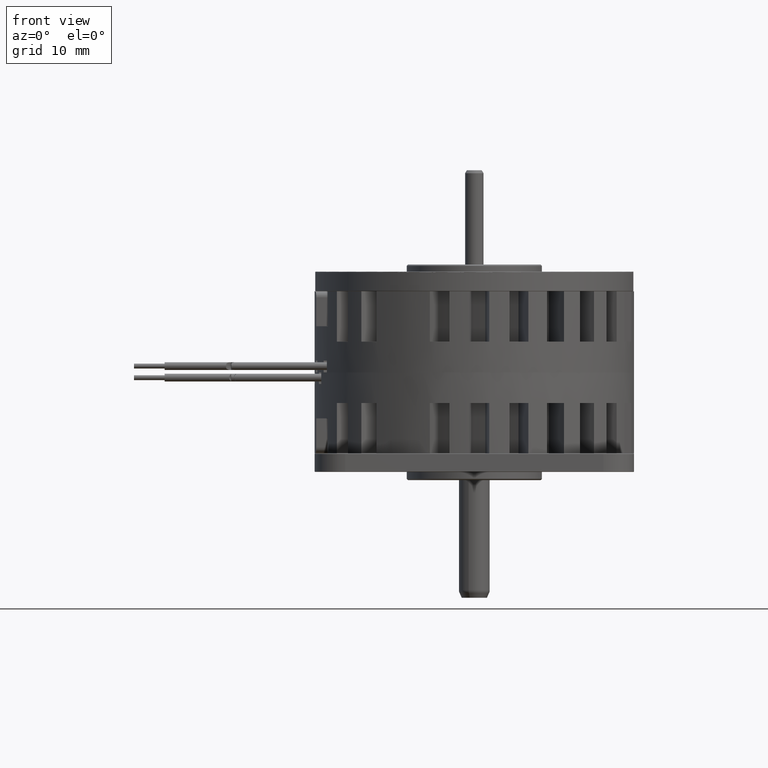
[diagram: clean part render]
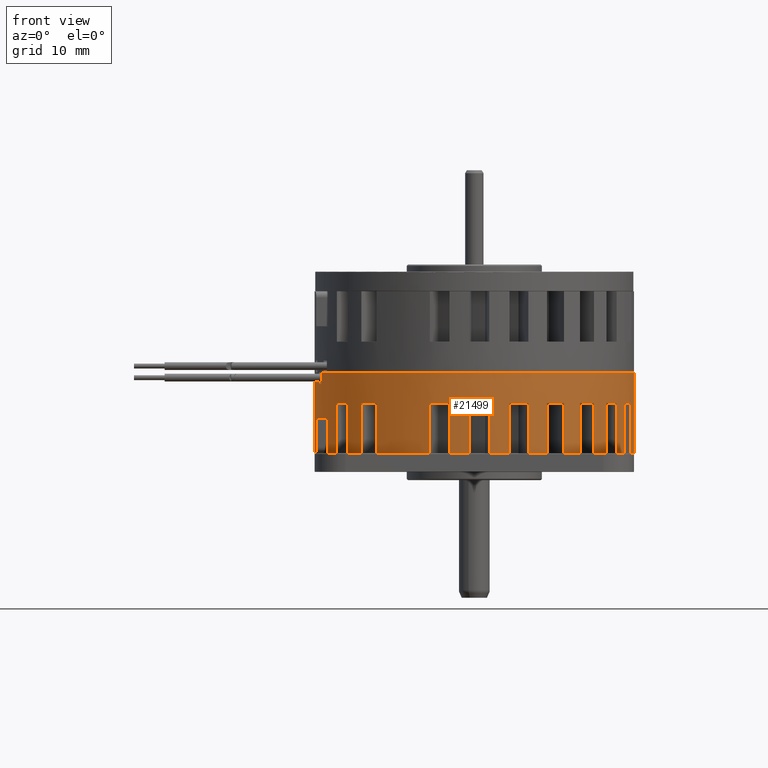
[diagram: same view with one face highlighted and labeled with its STEP entity id]
A machine part, front view. The second image highlights one B-rep face of the part: STEP entity #21499.
In plain terms, the highlighted cylindrical surface (partial cylindrical patch) has radius 26 mm, axis along (0, 0, 1).
Its self-contained STEP definition (entity closure, byte-faithful):
#16203=CARTESIAN_POINT('',(0.E0,0.E0,0.E0));
#16204=DIRECTION('',(0.E0,0.E0,1.E0));
#16205=DIRECTION('',(1.E0,0.E0,0.E0));
#16206=AXIS2_PLACEMENT_3D('',#16203,#16204,#16205);
#16253=CARTESIAN_POINT('',(0.E0,0.E0,0.E0));
#16254=DIRECTION('',(0.E0,0.E0,1.E0));
#16255=DIRECTION('',(-9.729898029220E-1,2.308480959633E-1,0.E0));
#16256=AXIS2_PLACEMENT_3D('',#16253,#16254,#16255);
#16793=DIRECTION('',(0.E0,0.E0,-1.E0));
#16794=VECTOR('',#16793,8.2E0);
#16795=CARTESIAN_POINT('',(2.551470164435E1,5.E0,1.32E1));
#16796=LINE('',#16795,#16794);
#16797=DIRECTION('',(1.992985722254E-14,-5.437384959628E-14,1.E0));
#16798=VECTOR('',#16797,8.2E0);
#16799=CARTESIAN_POINT('',(2.446881606178E1,8.790736063307E0,5.E0));
#16800=LINE('',#16799,#16798);
#16801=DIRECTION('',(-1.685372708602E-13,3.245100665148E-13,-1.E0));
#16802=VECTOR('',#16801,8.2E0);
#16803=CARTESIAN_POINT('',(2.315822802269E1,1.181932632806E1,1.32E1));
#16804=LINE('',#16803,#16802);
#16805=DIRECTION('',(1.143800501467E-13,-1.603053733117E-13,1.E0));
#16806=VECTOR('',#16805,8.2E0);
#16807=CARTESIAN_POINT('',(2.151391605052E1,1.459970603031E1,5.E0));
#16808=LINE('',#16807,#16806);
#16809=DIRECTION('',(1.317103607750E-13,-1.468743825748E-13,-1.E0));
#16810=VECTOR('',#16809,8.2E0);
#16811=CARTESIAN_POINT('',(1.949132277346E1,1.720721757115E1,1.32E1));
#16812=LINE('',#16811,#16810);
#16813=DIRECTION('',(-1.490406714033E-13,1.295440719465E-13,1.E0));
#16814=VECTOR('',#16813,8.2E0);
#16815=CARTESIAN_POINT('',(1.720721757115E1,1.949132277346E1,5.E0));
#16816=LINE('',#16815,#16814);
#16817=DIRECTION('',(-1.659377242659E-13,1.070146681297E-13,-1.E0));
#16818=VECTOR('',#16817,8.2E0);
#16819=CARTESIAN_POINT('',(1.459970603031E1,2.151391605052E1,1.32E1));
#16820=LINE('',#16819,#16818);
#16821=DIRECTION('',(3.273262419919E-13,-1.633381776717E-13,1.E0));
#16822=VECTOR('',#16821,8.2E0);
#16823=CARTESIAN_POINT('',(1.181932632806E1,2.315822802269E1,5.E0));
#16824=LINE('',#16823,#16822);
#16825=DIRECTION('',(-5.459047847913E-14,1.906334169112E-14,-1.E0));
#16826=VECTOR('',#16825,8.2E0);
#16827=CARTESIAN_POINT('',(8.790736063307E0,2.446881606178E1,1.32E1));
#16828=LINE('',#16827,#16826);
#16829=DIRECTION('',(0.E0,0.E0,1.E0));
#16830=VECTOR('',#16829,8.2E0);
#16831=CARTESIAN_POINT('',(5.688783343347E0,2.537001663524E1,5.E0));
#16832=LINE('',#16831,#16830);
#16833=DIRECTION('',(0.E0,0.E0,-1.E0));
#16834=VECTOR('',#16833,8.2E0);
#16835=CARTESIAN_POINT('',(2.429411819383E0,2.588625036987E1,1.32E1));
#16836=LINE('',#16835,#16834);
#16837=DIRECTION('',(0.E0,0.E0,1.E0));
#16838=VECTOR('',#16837,8.2E0);
#16839=CARTESIAN_POINT('',(-7.992068207138E-1,2.598771379821E1,5.E0));
#16840=LINE('',#16839,#16838);
#16841=DIRECTION('',(1.267278964694E-14,0.E0,-1.E0));
#16842=VECTOR('',#16841,8.2E0);
#16843=CARTESIAN_POINT('',(-4.084561303904E0,2.567715636426E1,1.32E1));
#16844=LINE('',#16843,#16842);
#16845=DIRECTION('',(4.159274550791E-14,1.083144414268E-14,1.E0));
#16846=VECTOR('',#16845,8.2E0);
#16847=CARTESIAN_POINT('',(-7.236979880952E0,2.497250732711E1,5.E0));
#16848=LINE('',#16847,#16846);
#16849=DIRECTION('',(2.512895041103E-14,1.603053733117E-14,-1.E0));
#16850=VECTOR('',#16849,8.2E0);
#16851=CARTESIAN_POINT('',(-1.594939277463E1,2.053331123128E1,1.32E1));
#16852=LINE('',#16851,#16850);
#16853=DIRECTION('',(8.491852207865E-14,8.448526431294E-14,1.E0));
#16854=VECTOR('',#16853,8.2E0);
#16855=CARTESIAN_POINT('',(-1.837241096939E1,1.839713334114E1,5.E0));
#16856=LINE('',#16855,#16854);
#16857=DIRECTION('',(6.628843815323E-14,8.470189319579E-14,-1.E0));
#16858=VECTOR('',#16857,8.2E0);
#16859=CARTESIAN_POINT('',(-2.055474012496E1,1.592176681136E1,1.32E1));
#16860=LINE('',#16859,#16858);
#16861=DIRECTION('',(-1.061481525983E-13,-1.815350038314E-13,1.E0));
#16862=VECTOR('',#16861,8.2E0);
#16863=CARTESIAN_POINT('',(-2.237038890905E1,1.325012075635E1,5.E0));
#16864=LINE('',#16863,#16862);
#16865=DIRECTION('',(1.015951455517E-13,2.530529392268E-13,-1.E0));
#16866=VECTOR('',#16865,5.7E0);
#16867=CARTESIAN_POINT('',(-2.386855755819E1,1.030979922652E1,1.32E1));
#16868=LINE('',#16867,#16866);
#16869=DIRECTION('',(-1.678090290838E-13,0.E0,1.E0));
#16870=VECTOR('',#16869,4.7E0);
#16871=CARTESIAN_POINT('',(-2.572814606613E1,3.75E0,7.5E0));
#16872=LINE('',#16871,#16870);
#16873=DIRECTION('',(2.807999358122E-5,0.E0,-9.999999996058E-1));
#16874=VECTOR('',#16873,1.320000000520E1);
#16875=CARTESIAN_POINT('',(-2.6E1,-1.788788806819E-14,1.32E1));
#16876=LINE('',#16875,#16874);
#16877=CARTESIAN_POINT('',(0.E0,0.E0,0.E0));
#16878=DIRECTION('',(0.E0,0.E0,-1.E0));
#16879=DIRECTION('',(-1.E0,0.E0,0.E0));
#16880=AXIS2_PLACEMENT_3D('',#16877,#16878,#16879);
#16882=DIRECTION('',(8.703373498095E-4,-4.561244774202E-5,9.999996202161E-1));
#16883=VECTOR('',#16882,1.900000721590E0);
#16884=CARTESIAN_POINT('',(-2.599446878132E1,6.112831229729E-1,0.E0));
#16885=LINE('',#16884,#16883);
#16886=DIRECTION('',(1.682864374169E-14,1.914258225617E-13,-1.E0));
#16887=VECTOR('',#16886,1.9E0);
#16888=CARTESIAN_POINT('',(-2.591431120537E1,2.109140761421E0,1.9E0));
#16889=LINE('',#16888,#16887);
#16890=DIRECTION('',(-5.983517774822E-14,-2.412105602975E-13,1.E0));
#16891=VECTOR('',#16890,1.9E0);
#16892=CARTESIAN_POINT('',(-2.529773487597E1,6.002050495046E0,0.E0));
#16893=LINE('',#16892,#16891);
#16894=DIRECTION('',(6.170502705285E-14,1.781031462662E-13,-1.E0));
#16895=VECTOR('',#16894,1.9E0);
#16896=CARTESIAN_POINT('',(-2.490950630832E1,7.450939234479E0,1.9E0));
#16897=LINE('',#16896,#16895);
#16907=CARTESIAN_POINT('',(0.E0,0.E0,1.32E1));
#16908=DIRECTION('',(0.E0,0.E0,-1.E0));
#16909=DIRECTION('',(-9.180214445459E-1,3.965307394816E-1,0.E0));
#16910=AXIS2_PLACEMENT_3D('',#16907,#16908,#16909);
#16925=CARTESIAN_POINT('',(0.E0,0.E0,1.32E1));
#16926=DIRECTION('',(0.E0,0.E0,-1.E0));
#16927=DIRECTION('',(-7.905669278831E-1,6.123756465908E-1,0.E0));
#16928=AXIS2_PLACEMENT_3D('',#16925,#16926,#16927);
#16943=CARTESIAN_POINT('',(0.E0,0.E0,1.32E1));
#16944=DIRECTION('',(0.E0,0.E0,-1.E0));
#16945=DIRECTION('',(-6.134381836396E-1,7.897427396646E-1,0.E0));
#16946=AXIS2_PLACEMENT_3D('',#16943,#16944,#16945);
#16961=CARTESIAN_POINT('',(0.E0,0.E0,1.32E1));
#16962=DIRECTION('',(0.E0,0.E0,-1.E0));
#16963=DIRECTION('',(-1.570985116886E-1,9.875829370869E-1,0.E0));
#16964=AXIS2_PLACEMENT_3D('',#16961,#16962,#16963);
#16979=CARTESIAN_POINT('',(0.E0,0.E0,1.32E1));
#16980=DIRECTION('',(0.E0,0.E0,-1.E0));
#16981=DIRECTION('',(9.343891613014E-2,9.956250142260E-1,0.E0));
#16982=AXIS2_PLACEMENT_3D('',#16979,#16980,#16981);
#16997=CARTESIAN_POINT('',(0.E0,0.E0,1.32E1));
#16998=DIRECTION('',(0.E0,0.E0,-1.E0));
#16999=DIRECTION('',(3.381052332041E-1,9.411083100685E-1,0.E0));
#17000=AXIS2_PLACEMENT_3D('',#16997,#16998,#16999);
#17015=CARTESIAN_POINT('',(0.E0,0.E0,1.32E1));
#17016=DIRECTION('',(0.E0,0.E0,-1.E0));
#17017=DIRECTION('',(5.615271550118E-1,8.274583096352E-1,0.E0));
#17018=AXIS2_PLACEMENT_3D('',#17015,#17016,#17017);
#17033=CARTESIAN_POINT('',(0.E0,0.E0,1.32E1));
#17034=DIRECTION('',(0.E0,0.E0,-1.E0));
#17035=DIRECTION('',(7.496662605176E-1,6.618160604288E-1,0.E0));
#17036=AXIS2_PLACEMENT_3D('',#17033,#17034,#17035);
#17051=CARTESIAN_POINT('',(0.E0,0.E0,1.32E1));
#17052=DIRECTION('',(0.E0,0.E0,-1.E0));
#17053=DIRECTION('',(8.907010777957E-1,4.545894741561E-1,0.E0));
#17054=AXIS2_PLACEMENT_3D('',#17051,#17052,#17053);
#17065=CARTESIAN_POINT('',(0.E0,0.E0,1.32E1));
#17066=DIRECTION('',(0.E0,0.E0,-1.E0));
#17067=DIRECTION('',(9.813346786287E-1,1.923076923077E-1,0.E0));
#17068=AXIS2_PLACEMENT_3D('',#17065,#17066,#17067);
#17251=CARTESIAN_POINT('',(0.E0,0.E0,1.32E1));
#17252=DIRECTION('',(0.E0,0.E0,-1.E0));
#17253=DIRECTION('',(-1.E0,0.E0,0.E0));
#17254=AXIS2_PLACEMENT_3D('',#17251,#17252,#17253);
#17698=CARTESIAN_POINT('',(0.E0,0.E0,7.5E0));
#17699=DIRECTION('',(0.E0,0.E0,-1.E0));
#17700=DIRECTION('',(-9.895440794664E-1,1.442307692308E-1,0.E0));
#17701=AXIS2_PLACEMENT_3D('',#17698,#17699,#17700);
#17712=CARTESIAN_POINT('',(-2.585415827290E1,2.75E0,1.32E1));
#17713=CARTESIAN_POINT('',(-2.584486315066E1,2.837388204172E0,1.32E1));
#17714=CARTESIAN_POINT('',(-2.582537260364E1,3.012086177828E0,
1.317691194071E1));
#17715=CARTESIAN_POINT('',(-2.579567894426E1,3.255868869007E0,
1.307600434233E1));
#17716=CARTESIAN_POINT('',(-2.576808352602E1,3.466310459547E0,
1.291414179773E1));
#17717=CARTESIAN_POINT('',(-2.574622903454E1,3.626155382452E0,
1.270543870314E1));
#17718=CARTESIAN_POINT('',(-2.573165379911E1,3.727526025901E0,
1.246010643771E1));
#17719=CARTESIAN_POINT('',(-2.572814606613E1,3.75E0,1.228655933226E1));
#17720=CARTESIAN_POINT('',(-2.572814606613E1,3.75E0,1.22E1));
#17740=CARTESIAN_POINT('',(0.E0,0.E0,5.E0));
#17741=DIRECTION('',(0.E0,0.E0,-1.E0));
#17742=DIRECTION('',(-8.603995734250E-1,5.096200290904E-1,0.E0));
#17743=AXIS2_PLACEMENT_3D('',#17740,#17741,#17742);
#17766=CARTESIAN_POINT('',(0.E0,0.E0,5.E0));
#17767=DIRECTION('',(0.E0,0.E0,-1.E0));
#17768=DIRECTION('',(-7.066311911305E-1,7.075820515824E-1,0.E0));
#17769=AXIS2_PLACEMENT_3D('',#17766,#17767,#17768);
#17792=CARTESIAN_POINT('',(0.E0,0.E0,5.E0));
#17793=DIRECTION('',(0.E0,0.E0,-1.E0));
#17794=DIRECTION('',(-2.783453800366E-1,9.604810510428E-1,0.E0));
#17795=AXIS2_PLACEMENT_3D('',#17792,#17793,#17794);
#17818=CARTESIAN_POINT('',(0.E0,0.E0,5.E0));
#17819=DIRECTION('',(0.E0,0.E0,-1.E0));
#17820=DIRECTION('',(-3.073872387361E-2,9.995274537773E-1,0.E0));
#17821=AXIS2_PLACEMENT_3D('',#17818,#17819,#17820);
#17844=CARTESIAN_POINT('',(0.E0,0.E0,5.E0));
#17845=DIRECTION('',(0.E0,0.E0,-1.E0));
#17846=DIRECTION('',(2.187993593595E-1,9.757698705862E-1,0.E0));
#17847=AXIS2_PLACEMENT_3D('',#17844,#17845,#17846);
#17870=CARTESIAN_POINT('',(0.E0,0.E0,5.E0));
#17871=DIRECTION('',(0.E0,0.E0,-1.E0));
#17872=DIRECTION('',(4.545894741561E-1,8.907010777957E-1,0.E0));
#17873=AXIS2_PLACEMENT_3D('',#17870,#17871,#17872);
#17896=CARTESIAN_POINT('',(0.E0,0.E0,5.E0));
#17897=DIRECTION('',(0.E0,0.E0,-1.E0));
#17898=DIRECTION('',(6.618160604288E-1,7.496662605176E-1,0.E0));
#17899=AXIS2_PLACEMENT_3D('',#17896,#17897,#17898);
#17922=CARTESIAN_POINT('',(0.E0,0.E0,5.E0));
#17923=DIRECTION('',(0.E0,0.E0,-1.E0));
#17924=DIRECTION('',(8.274583096352E-1,5.615271550118E-1,0.E0));
#17925=AXIS2_PLACEMENT_3D('',#17922,#17923,#17924);
#17948=CARTESIAN_POINT('',(0.E0,0.E0,5.E0));
#17949=DIRECTION('',(0.E0,0.E0,-1.E0));
#17950=DIRECTION('',(9.411083100685E-1,3.381052332041E-1,0.E0));
#17951=AXIS2_PLACEMENT_3D('',#17948,#17949,#17950);
#17978=DIRECTION('',(0.E0,0.E0,-1.E0));
#17979=VECTOR('',#17978,1.32E1);
#17980=CARTESIAN_POINT('',(2.6E1,1.721870530722E-14,1.32E1));
#17981=LINE('',#17980,#17979);
#19536=CARTESIAN_POINT('',(0.E0,0.E0,1.9E0));
#19537=DIRECTION('',(0.E0,0.E0,1.E0));
#19538=DIRECTION('',(-9.967042771294E-1,8.112079851618E-2,0.E0));
#19539=AXIS2_PLACEMENT_3D('',#19536,#19537,#19538);
#19587=CARTESIAN_POINT('',(0.E0,0.E0,1.9E0));
#19588=DIRECTION('',(0.E0,0.E0,1.E0));
#19589=DIRECTION('',(-9.580579349353E-1,2.865745859415E-1,0.E0));
#19590=AXIS2_PLACEMENT_3D('',#19587,#19588,#19589);
#19832=CARTESIAN_POINT('',(-2.599446878132E1,6.112831229729E-1,0.E0));
#19833=VERTEX_POINT('',#19832);
#19834=CARTESIAN_POINT('',(-2.6E1,0.E0,0.E0));
#19835=VERTEX_POINT('',#19834);
#19862=CARTESIAN_POINT('',(2.6E1,-2.486899575160E-14,0.E0));
#19863=VERTEX_POINT('',#19862);
#19864=CARTESIAN_POINT('',(-2.490950630832E1,7.450939234479E0,0.E0));
#19865=VERTEX_POINT('',#19864);
#19874=CARTESIAN_POINT('',(-2.529773487597E1,6.002050495046E0,0.E0));
#19875=VERTEX_POINT('',#19874);
#19876=CARTESIAN_POINT('',(-2.591431120537E1,2.109140761422E0,0.E0));
#19877=VERTEX_POINT('',#19876);
#20260=CARTESIAN_POINT('',(-2.386855755819E1,1.030979922652E1,1.32E1));
#20261=VERTEX_POINT('',#20260);
#20262=CARTESIAN_POINT('',(-2.237038890905E1,1.325012075635E1,1.32E1));
#20263=VERTEX_POINT('',#20262);
#20268=CARTESIAN_POINT('',(-2.055474012496E1,1.592176681136E1,1.32E1));
#20269=VERTEX_POINT('',#20268);
#20270=CARTESIAN_POINT('',(-1.837241096939E1,1.839713334114E1,1.32E1));
#20271=VERTEX_POINT('',#20270);
#20276=CARTESIAN_POINT('',(-1.594939277463E1,2.053331123128E1,1.32E1));
#20277=VERTEX_POINT('',#20276);
#20278=CARTESIAN_POINT('',(-7.236979880952E0,2.497250732711E1,1.32E1));
#20279=VERTEX_POINT('',#20278);
#20284=CARTESIAN_POINT('',(-4.084561303904E0,2.567715636426E1,1.32E1));
#20285=VERTEX_POINT('',#20284);
#20286=CARTESIAN_POINT('',(-7.992068207139E-1,2.598771379821E1,1.32E1));
#20287=VERTEX_POINT('',#20286);
#20292=CARTESIAN_POINT('',(2.429411819383E0,2.588625036987E1,1.32E1));
#20293=VERTEX_POINT('',#20292);
#20294=CARTESIAN_POINT('',(5.688783343347E0,2.537001663524E1,1.32E1));
#20295=VERTEX_POINT('',#20294);
#20300=CARTESIAN_POINT('',(8.790736063307E0,2.446881606178E1,1.32E1));
#20301=VERTEX_POINT('',#20300);
#20302=CARTESIAN_POINT('',(1.181932632807E1,2.315822802268E1,1.32E1));
#20303=VERTEX_POINT('',#20302);
#20308=CARTESIAN_POINT('',(1.459970603031E1,2.151391605052E1,1.32E1));
#20309=VERTEX_POINT('',#20308);
#20310=CARTESIAN_POINT('',(1.720721757115E1,1.949132277346E1,1.32E1));
#20311=VERTEX_POINT('',#20310);
#20316=CARTESIAN_POINT('',(1.949132277346E1,1.720721757115E1,1.32E1));
#20317=VERTEX_POINT('',#20316);
#20318=CARTESIAN_POINT('',(2.151391605052E1,1.459970603030E1,1.32E1));
#20319=VERTEX_POINT('',#20318);
#20324=CARTESIAN_POINT('',(2.315822802269E1,1.181932632806E1,1.32E1));
#20325=VERTEX_POINT('',#20324);
#20326=CARTESIAN_POINT('',(2.446881606178E1,8.790736063306E0,1.32E1));
#20327=VERTEX_POINT('',#20326);
#20332=CARTESIAN_POINT('',(2.551470164435E1,5.E0,1.32E1));
#20333=VERTEX_POINT('',#20332);
#20334=CARTESIAN_POINT('',(2.6E1,4.529709940471E-14,1.32E1));
#20335=VERTEX_POINT('',#20334);
#20416=CARTESIAN_POINT('',(-2.6E1,-4.707345624411E-14,1.32E1));
#20417=VERTEX_POINT('',#20416);
#20418=CARTESIAN_POINT('',(-2.585415827290E1,2.75E0,1.32E1));
#20419=VERTEX_POINT('',#20418);
#20516=CARTESIAN_POINT('',(-2.572814606613E1,3.75E0,7.5E0));
#20517=CARTESIAN_POINT('',(-2.572814606613E1,3.75E0,1.22E1));
#20518=VERTEX_POINT('',#20516);
#20519=VERTEX_POINT('',#20517);
#20520=CARTESIAN_POINT('',(2.551470164435E1,5.E0,5.E0));
#20521=VERTEX_POINT('',#20520);
#20522=CARTESIAN_POINT('',(2.446881606178E1,8.790736063307E0,5.E0));
#20523=VERTEX_POINT('',#20522);
#20524=CARTESIAN_POINT('',(2.315822802269E1,1.181932632807E1,5.E0));
#20525=VERTEX_POINT('',#20524);
#20526=CARTESIAN_POINT('',(2.151391605052E1,1.459970603031E1,5.E0));
#20527=VERTEX_POINT('',#20526);
#20528=CARTESIAN_POINT('',(1.949132277346E1,1.720721757115E1,5.E0));
#20529=VERTEX_POINT('',#20528);
#20530=CARTESIAN_POINT('',(1.720721757115E1,1.949132277346E1,5.E0));
#20531=VERTEX_POINT('',#20530);
#20532=CARTESIAN_POINT('',(1.459970603031E1,2.151391605052E1,5.E0));
#20533=VERTEX_POINT('',#20532);
#20534=CARTESIAN_POINT('',(1.181932632806E1,2.315822802269E1,5.E0));
#20535=VERTEX_POINT('',#20534);
#20536=CARTESIAN_POINT('',(8.790736063306E0,2.446881606178E1,5.E0));
#20537=VERTEX_POINT('',#20536);
#20538=CARTESIAN_POINT('',(5.688783343347E0,2.537001663524E1,5.E0));
#20539=VERTEX_POINT('',#20538);
#20540=CARTESIAN_POINT('',(2.429411819383E0,2.588625036987E1,5.E0));
#20541=VERTEX_POINT('',#20540);
#20542=CARTESIAN_POINT('',(-7.992068207138E-1,2.598771379821E1,5.E0));
#20543=VERTEX_POINT('',#20542);
#20544=CARTESIAN_POINT('',(-4.084561303904E0,2.567715636426E1,5.E0));
#20545=VERTEX_POINT('',#20544);
#20546=CARTESIAN_POINT('',(-7.236979880953E0,2.497250732711E1,5.E0));
#20547=VERTEX_POINT('',#20546);
#20548=CARTESIAN_POINT('',(-1.594939277463E1,2.053331123128E1,5.E0));
#20549=VERTEX_POINT('',#20548);
#20550=CARTESIAN_POINT('',(-1.837241096939E1,1.839713334114E1,5.E0));
#20551=VERTEX_POINT('',#20550);
#20552=CARTESIAN_POINT('',(-2.055474012496E1,1.592176681136E1,5.E0));
#20553=VERTEX_POINT('',#20552);
#20554=CARTESIAN_POINT('',(-2.237038890905E1,1.325012075635E1,5.E0));
#20555=VERTEX_POINT('',#20554);
#20556=CARTESIAN_POINT('',(-2.386855755819E1,1.030979922652E1,7.5E0));
#20557=VERTEX_POINT('',#20556);
#20558=CARTESIAN_POINT('',(-2.599281513973E1,6.111964592893E-1,1.9E0));
#20559=VERTEX_POINT('',#20558);
#20560=CARTESIAN_POINT('',(-2.591431120537E1,2.109140761421E0,1.9E0));
#20561=VERTEX_POINT('',#20560);
#20562=CARTESIAN_POINT('',(-2.529773487597E1,6.002050495046E0,1.9E0));
#20563=VERTEX_POINT('',#20562);
#20564=CARTESIAN_POINT('',(-2.490950630832E1,7.450939234478E0,1.9E0));
#20565=VERTEX_POINT('',#20564);
#21390=CARTESIAN_POINT('',(0.E0,0.E0,1.75E1));
#21391=DIRECTION('',(0.E0,0.E0,-1.E0));
#21392=DIRECTION('',(-1.E0,0.E0,0.E0));
#21393=AXIS2_PLACEMENT_3D('',#21390,#21391,#21392);
#21394=CYLINDRICAL_SURFACE('',#21393,2.6E1);
#21396=ORIENTED_EDGE('',*,*,#21395,.F.);
#21398=ORIENTED_EDGE('',*,*,#21397,.T.);
#21400=ORIENTED_EDGE('',*,*,#21399,.F.);
#21402=ORIENTED_EDGE('',*,*,#21401,.T.);
#21404=ORIENTED_EDGE('',*,*,#21403,.F.);
#21406=ORIENTED_EDGE('',*,*,#21405,.T.);
#21408=ORIENTED_EDGE('',*,*,#21407,.F.);
#21410=ORIENTED_EDGE('',*,*,#21409,.T.);
#21412=ORIENTED_EDGE('',*,*,#21411,.F.);
#21414=ORIENTED_EDGE('',*,*,#21413,.T.);
#21416=ORIENTED_EDGE('',*,*,#21415,.F.);
#21418=ORIENTED_EDGE('',*,*,#21417,.T.);
#21420=ORIENTED_EDGE('',*,*,#21419,.F.);
#21422=ORIENTED_EDGE('',*,*,#21421,.T.);
#21424=ORIENTED_EDGE('',*,*,#21423,.F.);
#21426=ORIENTED_EDGE('',*,*,#21425,.T.);
#21428=ORIENTED_EDGE('',*,*,#21427,.F.);
#21430=ORIENTED_EDGE('',*,*,#21429,.T.);
#21432=ORIENTED_EDGE('',*,*,#21431,.F.);
#21434=ORIENTED_EDGE('',*,*,#21433,.T.);
#21436=ORIENTED_EDGE('',*,*,#21435,.F.);
#21438=ORIENTED_EDGE('',*,*,#21437,.T.);
#21440=ORIENTED_EDGE('',*,*,#21439,.F.);
#21442=ORIENTED_EDGE('',*,*,#21441,.T.);
#21444=ORIENTED_EDGE('',*,*,#21443,.F.);
#21446=ORIENTED_EDGE('',*,*,#21445,.T.);
#21448=ORIENTED_EDGE('',*,*,#21447,.F.);
#21450=ORIENTED_EDGE('',*,*,#21449,.T.);
#21452=ORIENTED_EDGE('',*,*,#21451,.F.);
#21454=ORIENTED_EDGE('',*,*,#21453,.T.);
#21456=ORIENTED_EDGE('',*,*,#21455,.F.);
#21458=ORIENTED_EDGE('',*,*,#21457,.T.);
#21460=ORIENTED_EDGE('',*,*,#21459,.F.);
#21462=ORIENTED_EDGE('',*,*,#21461,.T.);
#21464=ORIENTED_EDGE('',*,*,#21463,.F.);
#21466=ORIENTED_EDGE('',*,*,#21465,.T.);
#21468=ORIENTED_EDGE('',*,*,#21467,.F.);
#21470=ORIENTED_EDGE('',*,*,#21469,.T.);
#21472=ORIENTED_EDGE('',*,*,#21471,.F.);
#21474=ORIENTED_EDGE('',*,*,#21473,.T.);
#21476=ORIENTED_EDGE('',*,*,#21475,.F.);
#21478=ORIENTED_EDGE('',*,*,#21477,.F.);
#21480=ORIENTED_EDGE('',*,*,#21479,.T.);
#21481=ORIENTED_EDGE('',*,*,#20969,.T.);
#21483=ORIENTED_EDGE('',*,*,#21482,.T.);
#21485=ORIENTED_EDGE('',*,*,#21484,.F.);
#21486=ORIENTED_EDGE('',*,*,#21379,.T.);
#21487=ORIENTED_EDGE('',*,*,#21021,.F.);
#21489=ORIENTED_EDGE('',*,*,#21488,.T.);
#21491=ORIENTED_EDGE('',*,*,#21490,.F.);
#21493=ORIENTED_EDGE('',*,*,#21492,.T.);
#21494=ORIENTED_EDGE('',*,*,#21005,.F.);
#21496=ORIENTED_EDGE('',*,*,#21495,.F.);
#21497=EDGE_LOOP('',(#21396,#21398,#21400,#21402,#21404,#21406,#21408,#21410,
#21412,#21414,#21416,#21418,#21420,#21422,#21424,#21426,#21428,#21430,#21432,
#21434,#21436,#21438,#21440,#21442,#21444,#21446,#21448,#21450,#21452,#21454,
#21456,#21458,#21460,#21462,#21464,#21466,#21468,#21470,#21472,#21474,#21476,
#21478,#21480,#21481,#21483,#21485,#21486,#21487,#21489,#21491,#21493,#21494,
#21496));
#21498=FACE_OUTER_BOUND('',#21497,.F.);
#21499=ADVANCED_FACE('',(#21498),#21394,.T.);
#16207=CIRCLE('',#16206,2.6E1);
#16257=CIRCLE('',#16256,2.6E1);
#16881=CIRCLE('',#16880,2.6E1);
#16911=CIRCLE('',#16910,2.6E1);
#16929=CIRCLE('',#16928,2.6E1);
#16947=CIRCLE('',#16946,2.6E1);
#16965=CIRCLE('',#16964,2.6E1);
#16983=CIRCLE('',#16982,2.6E1);
#17001=CIRCLE('',#17000,2.6E1);
#17019=CIRCLE('',#17018,2.6E1);
#17037=CIRCLE('',#17036,2.6E1);
#17055=CIRCLE('',#17054,2.6E1);
#17069=CIRCLE('',#17068,2.6E1);
#17255=CIRCLE('',#17254,2.6E1);
#17702=CIRCLE('',#17701,2.6E1);
#17721=B_SPLINE_CURVE_WITH_KNOTS('',3,(#17712,#17713,#17714,#17715,#17716,
#17717,#17718,#17719,#17720),.UNSPECIFIED.,.F.,.F.,(4,1,1,1,1,1,4),(0.E0,
1.666666666667E-1,3.333333333333E-1,5.E-1,6.666666666667E-1,8.333333333333E-1,
1.E0),.UNSPECIFIED.);
#17744=CIRCLE('',#17743,2.6E1);
#17770=CIRCLE('',#17769,2.6E1);
#17796=CIRCLE('',#17795,2.6E1);
#17822=CIRCLE('',#17821,2.6E1);
#17848=CIRCLE('',#17847,2.6E1);
#17874=CIRCLE('',#17873,2.6E1);
#17900=CIRCLE('',#17899,2.6E1);
#17926=CIRCLE('',#17925,2.6E1);
#17952=CIRCLE('',#17951,2.6E1);
#19540=CIRCLE('',#19539,2.6E1);
#19591=CIRCLE('',#19590,2.6E1);
#20969=EDGE_CURVE('',#19835,#19833,#16881,.T.);
#21005=EDGE_CURVE('',#19863,#19865,#16207,.T.);
#21021=EDGE_CURVE('',#19875,#19877,#16257,.T.);
#21379=EDGE_CURVE('',#20561,#19877,#16889,.T.);
#21395=EDGE_CURVE('',#20333,#20335,#17069,.T.);
#21397=EDGE_CURVE('',#20333,#20521,#16796,.T.);
#21399=EDGE_CURVE('',#20523,#20521,#17952,.T.);
#21401=EDGE_CURVE('',#20523,#20327,#16800,.T.);
#21403=EDGE_CURVE('',#20325,#20327,#17055,.T.);
#21405=EDGE_CURVE('',#20325,#20525,#16804,.T.);
#21407=EDGE_CURVE('',#20527,#20525,#17926,.T.);
#21409=EDGE_CURVE('',#20527,#20319,#16808,.T.);
#21411=EDGE_CURVE('',#20317,#20319,#17037,.T.);
#21413=EDGE_CURVE('',#20317,#20529,#16812,.T.);
#21415=EDGE_CURVE('',#20531,#20529,#17900,.T.);
#21417=EDGE_CURVE('',#20531,#20311,#16816,.T.);
#21419=EDGE_CURVE('',#20309,#20311,#17019,.T.);
#21421=EDGE_CURVE('',#20309,#20533,#16820,.T.);
#21423=EDGE_CURVE('',#20535,#20533,#17874,.T.);
#21425=EDGE_CURVE('',#20535,#20303,#16824,.T.);
#21427=EDGE_CURVE('',#20301,#20303,#17001,.T.);
#21429=EDGE_CURVE('',#20301,#20537,#16828,.T.);
#21431=EDGE_CURVE('',#20539,#20537,#17848,.T.);
#21433=EDGE_CURVE('',#20539,#20295,#16832,.T.);
#21435=EDGE_CURVE('',#20293,#20295,#16983,.T.);
#21437=EDGE_CURVE('',#20293,#20541,#16836,.T.);
#21439=EDGE_CURVE('',#20543,#20541,#17822,.T.);
#21441=EDGE_CURVE('',#20543,#20287,#16840,.T.);
#21443=EDGE_CURVE('',#20285,#20287,#16965,.T.);
#21445=EDGE_CURVE('',#20285,#20545,#16844,.T.);
#21447=EDGE_CURVE('',#20547,#20545,#17796,.T.);
#21449=EDGE_CURVE('',#20547,#20279,#16848,.T.);
#21451=EDGE_CURVE('',#20277,#20279,#16947,.T.);
#21453=EDGE_CURVE('',#20277,#20549,#16852,.T.);
#21455=EDGE_CURVE('',#20551,#20549,#17770,.T.);
#21457=EDGE_CURVE('',#20551,#20271,#16856,.T.);
#21459=EDGE_CURVE('',#20269,#20271,#16929,.T.);
#21461=EDGE_CURVE('',#20269,#20553,#16860,.T.);
#21463=EDGE_CURVE('',#20555,#20553,#17744,.T.);
#21465=EDGE_CURVE('',#20555,#20263,#16864,.T.);
#21467=EDGE_CURVE('',#20261,#20263,#16911,.T.);
#21469=EDGE_CURVE('',#20261,#20557,#16868,.T.);
#21471=EDGE_CURVE('',#20518,#20557,#17702,.T.);
#21473=EDGE_CURVE('',#20518,#20519,#16872,.T.);
#21475=EDGE_CURVE('',#20419,#20519,#17721,.T.);
#21477=EDGE_CURVE('',#20417,#20419,#17255,.T.);
#21479=EDGE_CURVE('',#20417,#19835,#16876,.T.);
#21482=EDGE_CURVE('',#19833,#20559,#16885,.T.);
#21484=EDGE_CURVE('',#20561,#20559,#19540,.T.);
#21488=EDGE_CURVE('',#19875,#20563,#16893,.T.);
#21490=EDGE_CURVE('',#20565,#20563,#19591,.T.);
#21492=EDGE_CURVE('',#20565,#19865,#16897,.T.);
#21495=EDGE_CURVE('',#20335,#19863,#17981,.T.);